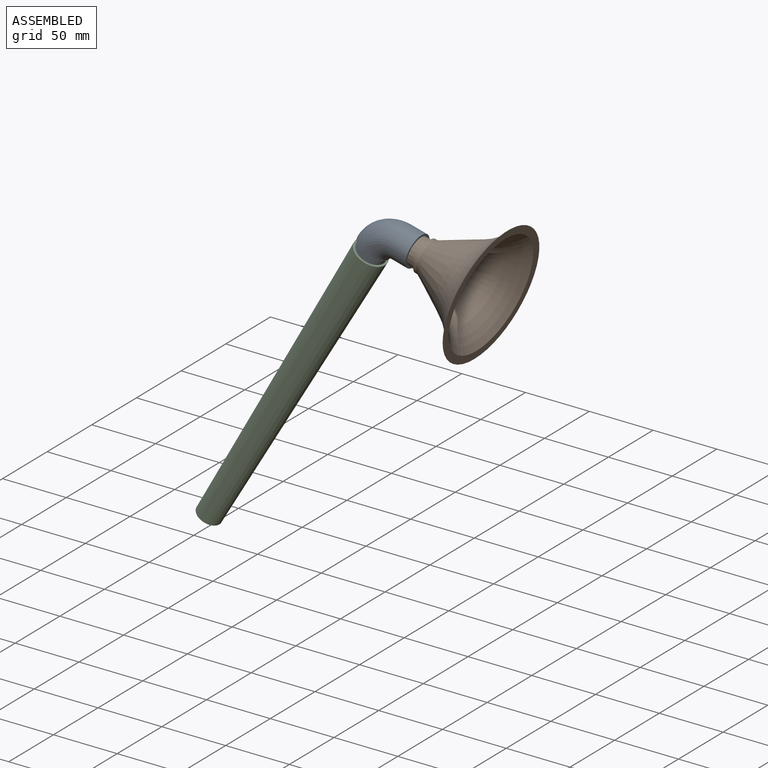
[diagram: assembled view]
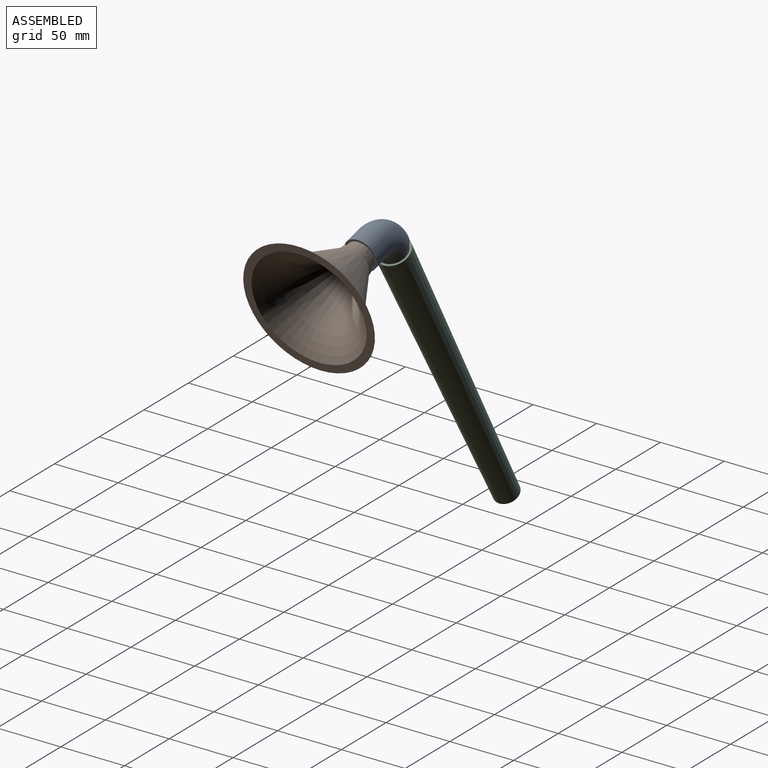
[diagram: assembled view, second angle]
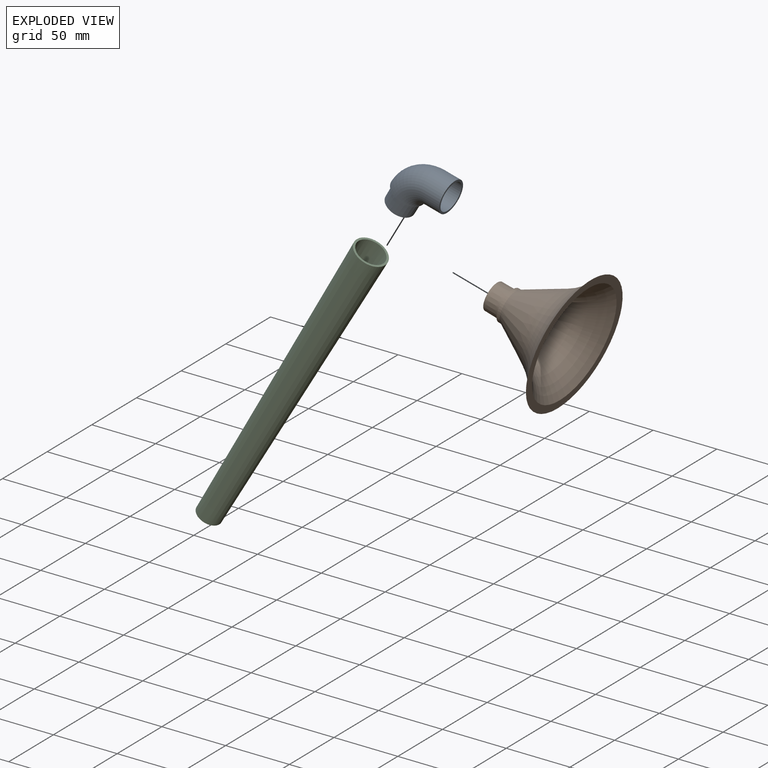
[diagram: exploded view]
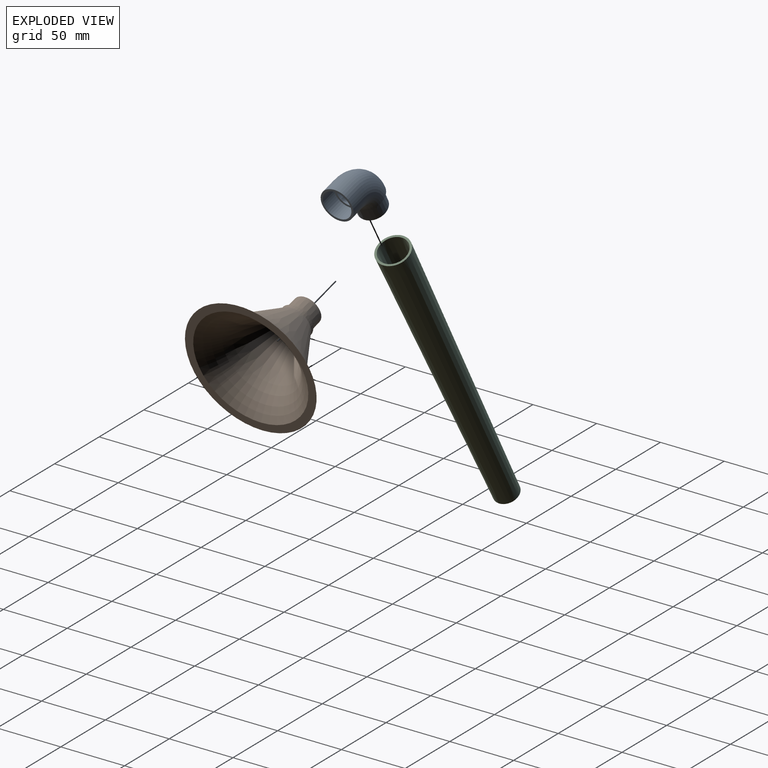
[diagram: exploded view, second angle]
ASSEMBLY  parts=3 mates=2
PART A: 10 faces, bbox 45x25.4x46.7 mm
  f0: plane 22.1x21.35mm, normal (0.97,0,0.26), area 98.5mm2, adj f2,f7
  f1: torus R=19.05mm, axis (0,-1,0), area 1989.8mm2, adj f3,f8
  f2: torus R=19.05mm, axis (0,-1,0), area 1492.4mm2, adj f0,f4
  f3: plane 25.4x25.4mm, normal (0,0,-1), area 123.2mm2, adj f1,f5
  f4: cone r=9.53mm half-angle=1deg, axis (0,0,-1), area 769mm2, adj f2,f6
  f5: cone r=11.05mm half-angle=1deg, axis (0,0,1), area 873mm2, adj f3,f6
  f6: plane 21.65x21.65mm, normal (0,0,-1), area 69.8mm2, adj f4,f5
  f7: cylinder r=11.05mm len=24.63mm, axis (-0.97,0,-0.26), area 881.7mm2, adj f0,f9
  f8: cylinder r=12.7mm len=27.82mm, axis (-0.97,0,-0.26), area 1013.4mm2, adj f1,f9
  f9: plane 25.4x24.53mm, normal (0.97,0,0.26), area 123.2mm2, adj f7,f8
PART B: 11 faces, bbox 158.4x158.4x74 mm
  f0: torus R=73.18mm, axis (0,0,1), area 7351mm2, adj f1,f2
  f1: cone r=29.57mm half-angle=29deg, axis (0,0,-1), area 4618.7mm2, adj f0,f6
  f2: plane 101.6x101.6mm, normal (0,0,-1), area 1910.9mm2, adj f0,f3
  f3: torus R=73.18mm, axis (0,0,1), area 5702.1mm2, adj f2,f4
  f4: cone r=26.79mm half-angle=29deg, axis (0,0,-1), area 4116.9mm2, adj f3,f5
  f5: cylinder r=9.07mm len=18.14mm, axis (0,0,-1), area 144.7mm2, adj f4,f8
  f6: cylinder r=12.7mm len=25.4mm, axis (0,0,-1), area 202.7mm2, adj f1,f7
  f7: plane 25.4x25.4mm, normal (0,0,1), area 123.2mm2, adj f6,f9
  f8: cone r=9.07mm half-angle=1deg, axis (0,0,1), area 703mm2, adj f5,f10
  f9: cone r=11.05mm half-angle=1deg, axis (0,0,-1), area 838.4mm2, adj f7,f10
  f10: plane 21.67x21.67mm, normal (0,0,1), area 98.2mm2, adj f8,f9
PART C: 4 faces, bbox 25.4x25.4x254 mm
  f0: cone r=12.7mm half-angle=0.7deg, axis (0,0,-1), area 17634.9mm2, adj f1,f2
  f1: plane 18.8x18.8mm, normal (0,0,1), area 88.9mm2, adj f0,f3
  f2: plane 25.4x25.4mm, normal (0,0,-1), area 123.2mm2, adj f0,f3
  f3: cone r=11.05mm half-angle=0.7deg, axis (0,0,-1), area 14999.6mm2, adj f1,f2
PLACE A rot(axis=(0,1,0),30deg) t=(-131.46,11.61,309.2)mm
PLACE B rot(axis=(-0.61,0,0.79),180deg) t=(-40.1,11.61,299.34)mm
PLACE C rot(axis=(-0.69,-0.69,0.19),158.9deg) t=(-197.75,11.61,194.38)mm
MATE slider A.f7 <-> B.f9  axis (-0.97,0,0.26) through (-103.89,11.61,316.44)mm
MATE slider C.f0 <-> A.f5  axis (0.5,0,0.87) through (-134.25,11.61,304.37)mm
